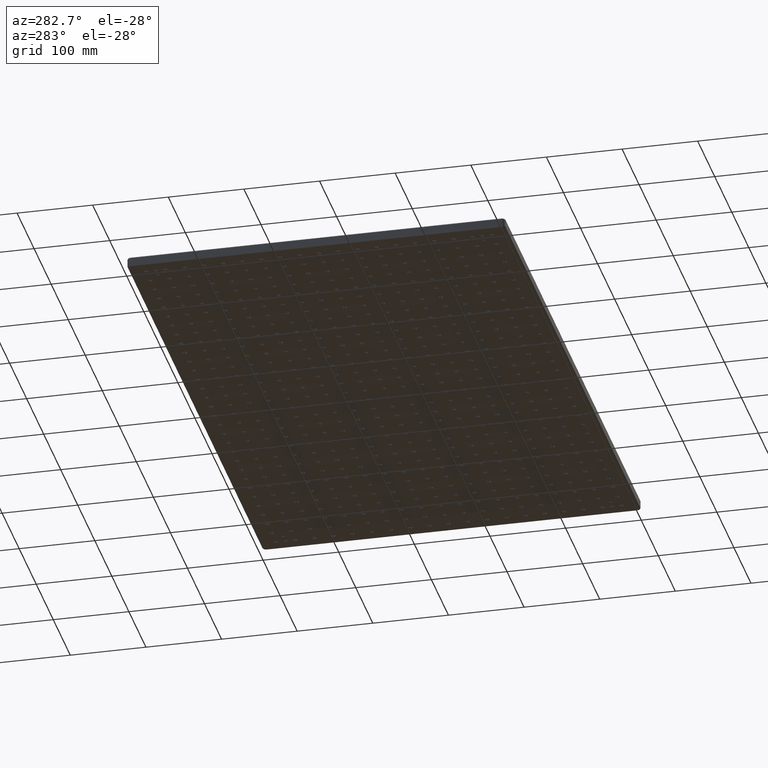
[diagram: clean part render]
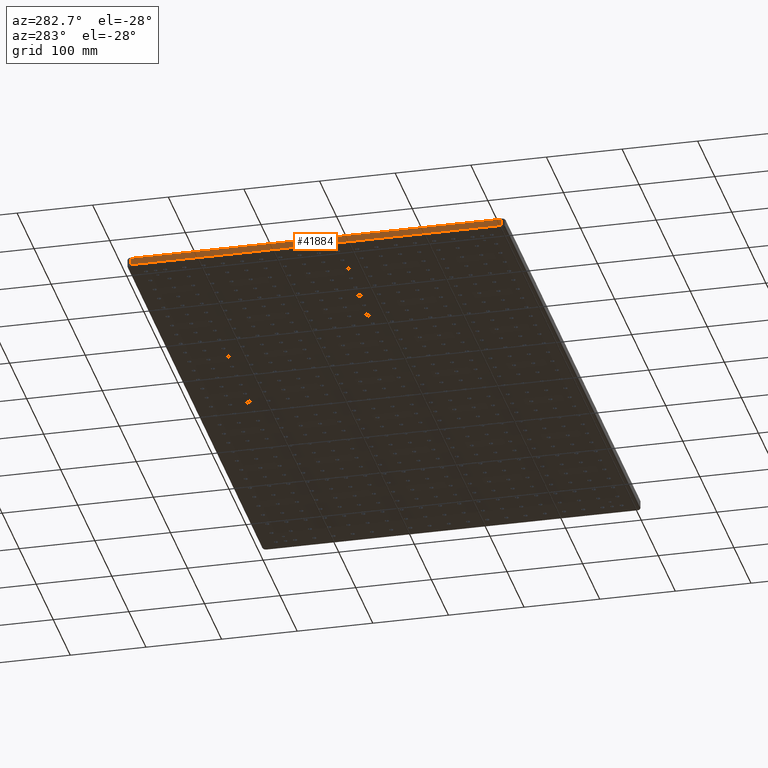
[diagram: same view with one face highlighted and labeled with its STEP entity id]
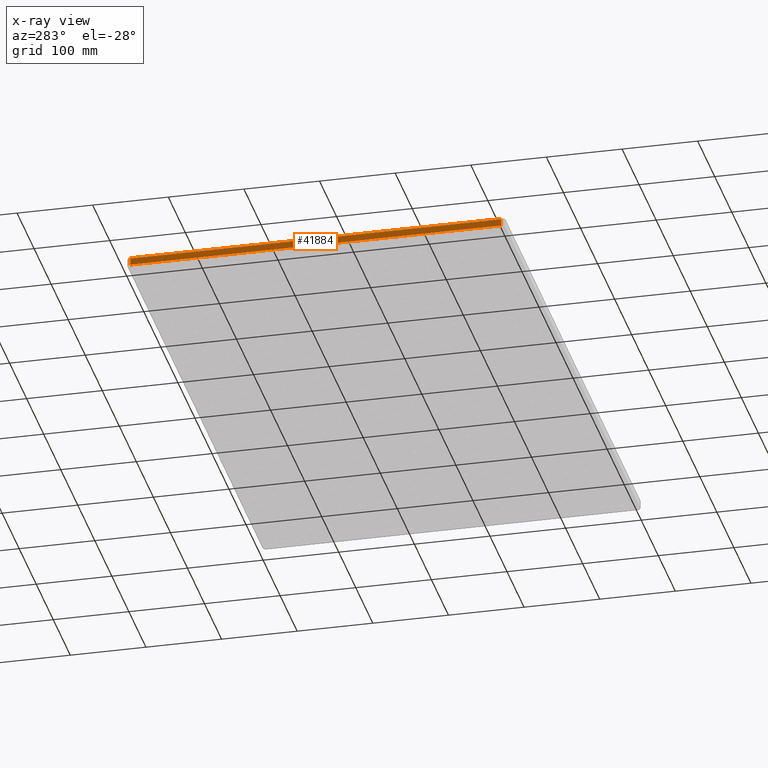
[diagram: x-ray of the same camera — body ghosted, the highlighted face saturated]
A machine part, auxiliary view. The second image highlights one B-rep face of the part: STEP entity #41884.
The next image is the same camera in x-ray: the body ghosted, the highlighted face saturated — about 0% of this face is hidden behind the body in this view.
In plain terms, the highlighted planar face has unit normal (-1, 0, 0).
Its self-contained STEP definition (entity closure, byte-faithful):
#367 = EDGE_CURVE ( 'NONE', #42603, #38327, #36066, .T. ) ;
#433 = PLANE ( 'NONE',  #13278 ) ;
#2504 = ORIENTED_EDGE ( 'NONE', *, *, #36015, .T. ) ;
#2842 = EDGE_CURVE ( 'NONE', #38327, #25020, #11955, .T. ) ;
#6782 = CARTESIAN_POINT ( 'NONE',  ( 0.0000000000000000000, 4.999999999999998200, -13.00000000000000000 ) ) ;
#9031 = LINE ( 'NONE', #11533, #18835 ) ;
#11533 = CARTESIAN_POINT ( 'NONE',  ( 0.0000000000000000000, 0.0000000000000000000, -11.00000000000000000 ) ) ;
#11955 = LINE ( 'NONE', #43115, #41400 ) ;
#13278 = AXIS2_PLACEMENT_3D ( 'NONE', #21424, #28295, #35597 ) ;
#15048 = ORIENTED_EDGE ( 'NONE', *, *, #367, .T. ) ;
#18835 = VECTOR ( 'NONE', #42798, 1000.000000000000000 ) ;
#21424 = CARTESIAN_POINT ( 'NONE',  ( 0.0000000000000000000, 0.0000000000000000000, -13.00000000000000000 ) ) ;
#21806 = DIRECTION ( 'NONE',  ( -0.0000000000000000000, 1.000000000000000000, -0.0000000000000000000 ) ) ;
#22099 = CARTESIAN_POINT ( 'NONE',  ( 0.0000000000000000000, 495.0000000000000000, -2.000000000000000000 ) ) ;
#22183 = DIRECTION ( 'NONE',  ( -0.0000000000000000000, -0.0000000000000000000, -1.000000000000000000 ) ) ;
#23796 = CARTESIAN_POINT ( 'NONE',  ( 0.0000000000000000000, 4.999999999999998200, -2.000000000000000000 ) ) ;
#25020 = VERTEX_POINT ( 'NONE', #39253 ) ;
#27222 = VERTEX_POINT ( 'NONE', #27407 ) ;
#27407 = CARTESIAN_POINT ( 'NONE',  ( 0.0000000000000000000, 4.999999999999998200, -11.00000000000000000 ) ) ;
#28295 = DIRECTION ( 'NONE',  ( -1.000000000000000000, 0.0000000000000000000, 0.0000000000000000000 ) ) ;
#30398 = VECTOR ( 'NONE', #32536, 1000.000000000000000 ) ;
#30410 = CARTESIAN_POINT ( 'NONE',  ( 0.0000000000000000000, 495.0000000000000000, -2.000000000000000000 ) ) ;
#30706 = FACE_OUTER_BOUND ( 'NONE', #39957, .T. ) ;
#31225 = ORIENTED_EDGE ( 'NONE', *, *, #39113, .T. ) ;
#32536 = DIRECTION ( 'NONE',  ( 0.0000000000000000000, 0.0000000000000000000, 1.000000000000000000 ) ) ;
#34766 = LINE ( 'NONE', #6782, #30398 ) ;
#35597 = DIRECTION ( 'NONE',  ( 0.0000000000000000000, 0.0000000000000000000, 1.000000000000000000 ) ) ;
#36015 = EDGE_CURVE ( 'NONE', #25020, #27222, #9031, .T. ) ;
#36066 = LINE ( 'NONE', #22099, #44316 ) ;
#38239 = ORIENTED_EDGE ( 'NONE', *, *, #2842, .T. ) ;
#38327 = VERTEX_POINT ( 'NONE', #30410 ) ;
#39113 = EDGE_CURVE ( 'NONE', #27222, #42603, #34766, .T. ) ;
#39253 = CARTESIAN_POINT ( 'NONE',  ( 0.0000000000000000000, 495.0000000000000000, -11.00000000000000000 ) ) ;
#39957 = EDGE_LOOP ( 'NONE', ( #38239, #2504, #31225, #15048 ) ) ;
#41400 = VECTOR ( 'NONE', #22183, 1000.000000000000000 ) ;
#41884 = ADVANCED_FACE ( 'NONE', ( #30706 ), #433, .T. ) ;
#42603 = VERTEX_POINT ( 'NONE', #23796 ) ;
#42798 = DIRECTION ( 'NONE',  ( 0.0000000000000000000, -1.000000000000000000, 0.0000000000000000000 ) ) ;
#43115 = CARTESIAN_POINT ( 'NONE',  ( 0.0000000000000000000, 495.0000000000000000, -13.00000000000000000 ) ) ;
#44316 = VECTOR ( 'NONE', #21806, 1000.000000000000000 ) ;